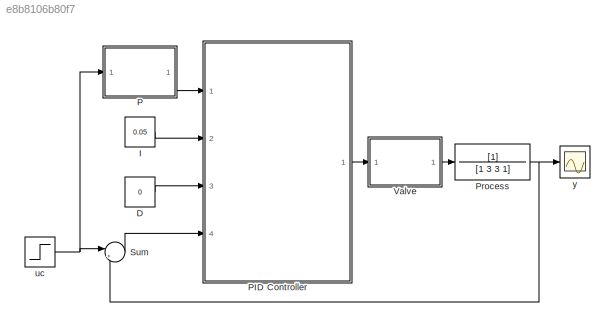
MODEL slx_e8b8106b80f7
KIND model
BLOCK [Constant] D
  Value = 0
BLOCK [Constant] I
  Value = 0.05
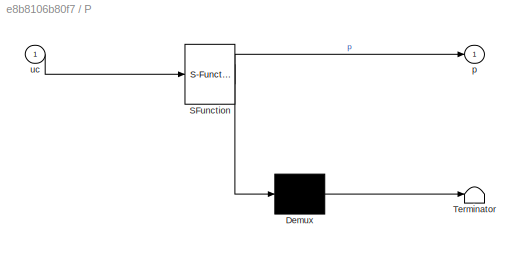
BLOCK [SubSystem] P
  ErrorFcn = Stateflow.Translate.translate
  FunctionWithSeparateData = off
  MaskHideContents = off
  MinAlgLoopOccurrences = off
  Opaque = off
  PermitHierarchicalResolution = ExplicitOnly
  Ports = [1, 1]
  PropExecContextOutsideSubsystem = off
  RTWSystemCode = Auto
  RequestExecContextInheritance = off
  SFBlockType = MATLAB Function
  TreatAsAtomicUnit = on
BLOCK [Demux] P/ Demux 
  Outputs = 1
  Ports = [1, 1]
BLOCK [S-Function] P/ SFunction 
  EnableBusSupport = on
  FunctionName = sf_sfun
  PortCounts = [1 2]
  Ports = [1, 2]
  Tag = Stateflow S-Function NonlinearValveWithGainChange 1
BLOCK [Terminator] P/ Terminator 
BLOCK [Outport] P/p
  IconDisplay = Port number
BLOCK [Inport] P/uc
  IconDisplay = Port number
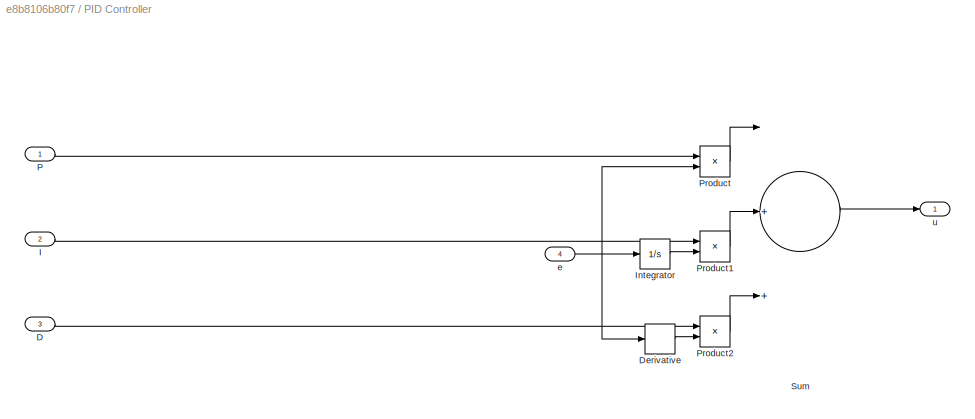
BLOCK [SubSystem] PID Controller
  FunctionWithSeparateData = off
  MaskHideContents = off
  MinAlgLoopOccurrences = off
  Opaque = off
  Ports = [4, 1]
  PropExecContextOutsideSubsystem = off
  RTWSystemCode = Auto
  RequestExecContextInheritance = off
BLOCK [Inport] PID Controller/D
  IconDisplay = Port number
  Port = 3
BLOCK [Derivative] PID Controller/Derivative
BLOCK [Inport] PID Controller/I
  IconDisplay = Port number
  Port = 2
BLOCK [Integrator] PID Controller/Integrator
  Ports = [1, 1]
BLOCK [Inport] PID Controller/P
  IconDisplay = Port number
BLOCK [Product] PID Controller/Product
  InputSameDT = off
  OutDataTypeStr = Inherit: Inherit via internal rule
  Ports = [2, 1]
  RndMeth = Floor
  SaturateOnIntegerOverflow = off
BLOCK [Product] PID Controller/Product1
  InputSameDT = off
  OutDataTypeStr = Inherit: Inherit via internal rule
  Ports = [2, 1]
  RndMeth = Floor
  SaturateOnIntegerOverflow = off
BLOCK [Product] PID Controller/Product2
  InputSameDT = off
  OutDataTypeStr = Inherit: Inherit via internal rule
  Ports = [2, 1]
  RndMeth = Floor
  SaturateOnIntegerOverflow = off
BLOCK [Sum] PID Controller/Sum
  InputSameDT = off
  Inputs = |+++
  OutDataTypeStr = Inherit: Inherit via internal rule
  Ports = [3, 1]
  SaturateOnIntegerOverflow = off
BLOCK [Inport] PID Controller/e
  IconDisplay = Port number
  Port = 4
BLOCK [Outport] PID Controller/u
  IconDisplay = Port number
BLOCK [TransferFcn] Process
  AbsoluteTolerance = -1
  Denominator = [1 3 3 1]
BLOCK [Sum] Sum
  IconShape = round
  InputSameDT = off
  Inputs = |+-
  OutDataTypeStr = Inherit: Inherit via internal rule
  Ports = [2, 1]
  SaturateOnIntegerOverflow = off
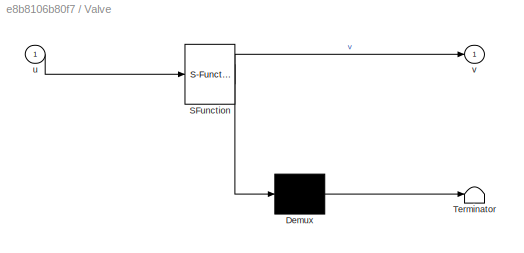
BLOCK [SubSystem] Valve
  ErrorFcn = Stateflow.Translate.translate
  FunctionWithSeparateData = off
  MaskHideContents = off
  MinAlgLoopOccurrences = off
  Opaque = off
  PermitHierarchicalResolution = ExplicitOnly
  Ports = [1, 1]
  PropExecContextOutsideSubsystem = off
  RTWSystemCode = Auto
  RequestExecContextInheritance = off
  SFBlockType = MATLAB Function
  TreatAsAtomicUnit = on
BLOCK [Demux] Valve/ Demux 
  Outputs = 1
  Ports = [1, 1]
BLOCK [S-Function] Valve/ SFunction 
  EnableBusSupport = on
  FunctionName = sf_sfun
  PortCounts = [1 2]
  Ports = [1, 2]
  Tag = Stateflow S-Function NonlinearValveWithGainChange 2
BLOCK [Terminator] Valve/ Terminator 
BLOCK [Inport] Valve/u
  IconDisplay = Port number
BLOCK [Outport] Valve/v
  IconDisplay = Port number
BLOCK [Step] uc
  After = 5.1
  Before = 5
  SampleTime = 0
  Time = 200
BLOCK [Scope] y
  DataFormat = StructureWithTime
  Floating = off
  LimitDataPoints = off
  NumInputPorts = 1
  Ports = [1]
  SampleTime = 0
  ShowLegends = off
  TimeRange = 7000
  YMin = 0
LINE D:1 -> PID Controller:3
LINE I:1 -> PID Controller:2
LINE P:1 -> PID Controller:1
LINE PID Controller/D:1 -> PID Controller/Product2:1
LINE PID Controller/Derivative:1 -> PID Controller/Product2:2
LINE PID Controller/I:1 -> PID Controller/Product1:1
LINE PID Controller/Integrator:1 -> PID Controller/Product1:2
LINE PID Controller/P:1 -> PID Controller/Product:1
LINE PID Controller/Product1:1 -> PID Controller/Sum:2
LINE PID Controller/Product2:1 -> PID Controller/Sum:3
LINE PID Controller/Product:1 -> PID Controller/Sum:1
LINE PID Controller/Sum:1 -> PID Controller/u:1
NET PID Controller/e:1 -> PID Controller/Derivative:1, PID Controller/Integrator:1, PID Controller/Product:2
LINE PID Controller:1 -> Valve:1
NET Process:1 -> Sum:2, y:1
LINE Sum:1 -> PID Controller:4
LINE Valve:1 -> Process:1
NET uc:1 -> P:1, Sum:1
note: NET lines group one-source signal fan-out (src -> all destinations, sorted); 1:1 wires keep LINE
